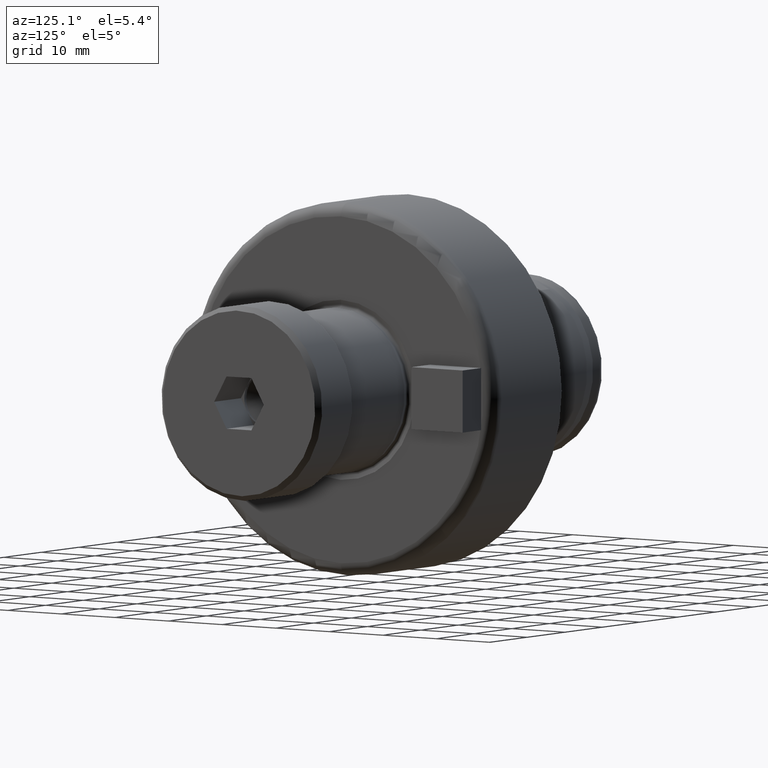
[diagram: clean part render]
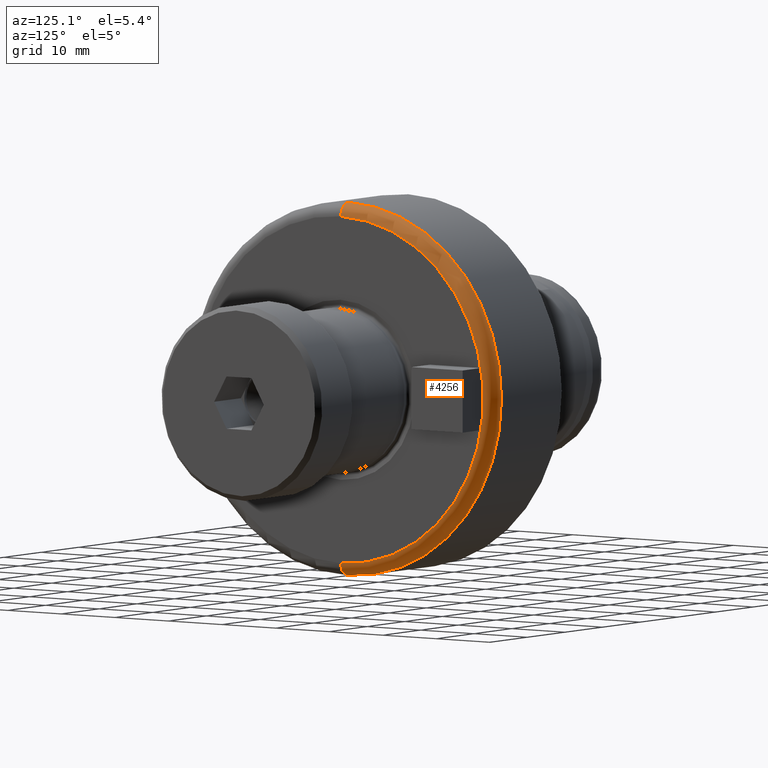
[diagram: same view with one face highlighted and labeled with its STEP entity id]
A machine part, auxiliary view. The second image highlights one B-rep face of the part: STEP entity #4256.
In plain terms, the highlighted toroidal blend (fillet) surface has major radius 26.6 mm and minor (blend) radius 2 mm.
Its self-contained STEP definition (entity closure, byte-faithful):
#3 = VERTEX_POINT ( 'NONE', #480 ) ;
#85 = CARTESIAN_POINT ( 'NONE',  ( 48.00000000000000000, 3.502489845561430200E-015, -28.60000000000000100 ) ) ;
#216 = CARTESIAN_POINT ( 'NONE',  ( 48.00000000000000000, 0.0000000000000000000, 26.59999999999999800 ) ) ;
#480 = CARTESIAN_POINT ( 'NONE',  ( 48.00000000000000000, 0.0000000000000000000, 28.60000000000000100 ) ) ;
#778 = VERTEX_POINT ( 'NONE', #6231 ) ;
#779 = AXIS2_PLACEMENT_3D ( 'NONE', #3778, #3231, #2605 ) ;
#941 = DIRECTION ( 'NONE',  ( 0.0000000000000000000, 0.0000000000000000000, 1.000000000000000000 ) ) ;
#1408 = EDGE_CURVE ( 'NONE', #2474, #3, #5229, .T. ) ;
#1490 = DIRECTION ( 'NONE',  ( 0.0000000000000000000, 0.0000000000000000000, 1.000000000000000000 ) ) ;
#1509 = EDGE_CURVE ( 'NONE', #3, #7484, #6279, .T. ) ;
#1541 = DIRECTION ( 'NONE',  ( -1.000000000000000000, -0.0000000000000000000, -0.0000000000000000000 ) ) ;
#1875 = EDGE_CURVE ( 'NONE', #778, #7484, #5604, .T. ) ;
#1992 = EDGE_LOOP ( 'NONE', ( #5800, #2471, #4722, #3945 ) ) ;
#2250 = AXIS2_PLACEMENT_3D ( 'NONE', #7473, #5127, #3901 ) ;
#2471 = ORIENTED_EDGE ( 'NONE', *, *, #1875, .T. ) ;
#2474 = VERTEX_POINT ( 'NONE', #7451 ) ;
#2594 = DIRECTION ( 'NONE',  ( 0.0000000000000000000, -1.000000000000000000, 0.0000000000000000000 ) ) ;
#2605 = DIRECTION ( 'NONE',  ( 0.0000000000000000000, 0.0000000000000000000, 1.000000000000000000 ) ) ;
#2714 = AXIS2_PLACEMENT_3D ( 'NONE', #216, #2594, #6850 ) ;
#3231 = DIRECTION ( 'NONE',  ( -1.000000000000000000, -0.0000000000000000000, -0.0000000000000000000 ) ) ;
#3234 = EDGE_CURVE ( 'NONE', #2474, #778, #3615, .T. ) ;
#3358 = DIRECTION ( 'NONE',  ( -1.000000000000000000, -0.0000000000000000000, -0.0000000000000000000 ) ) ;
#3615 = CIRCLE ( 'NONE', #4916, 26.59999999999999800 ) ;
#3778 = CARTESIAN_POINT ( 'NONE',  ( 48.00000000000000000, 0.0000000000000000000, 0.0000000000000000000 ) ) ;
#3901 = DIRECTION ( 'NONE',  ( 0.0000000000000000000, -1.224646799147353500E-016, 1.000000000000000000 ) ) ;
#3915 = CARTESIAN_POINT ( 'NONE',  ( 48.00000000000000000, 0.0000000000000000000, 0.0000000000000000000 ) ) ;
#3945 = ORIENTED_EDGE ( 'NONE', *, *, #1408, .F. ) ;
#4256 = ADVANCED_FACE ( 'NONE', ( #6515 ), #6606, .T. ) ;
#4722 = ORIENTED_EDGE ( 'NONE', *, *, #1509, .F. ) ;
#4916 = AXIS2_PLACEMENT_3D ( 'NONE', #7577, #1541, #1490 ) ;
#5127 = DIRECTION ( 'NONE',  ( -0.0000000000000000000, 1.000000000000000000, 1.224646799147353200E-016 ) ) ;
#5229 = CIRCLE ( 'NONE', #2714, 2.000000000000001800 ) ;
#5604 = CIRCLE ( 'NONE', #2250, 2.000000000000001800 ) ;
#5800 = ORIENTED_EDGE ( 'NONE', *, *, #3234, .T. ) ;
#6085 = AXIS2_PLACEMENT_3D ( 'NONE', #3915, #3358, #941 ) ;
#6231 = CARTESIAN_POINT ( 'NONE',  ( 50.00000000000000000, 3.380025165646694700E-015, -26.59999999999999800 ) ) ;
#6279 = CIRCLE ( 'NONE', #6085, 28.60000000000000100 ) ;
#6515 = FACE_OUTER_BOUND ( 'NONE', #1992, .T. ) ;
#6606 = TOROIDAL_SURFACE ( 'NONE', #779, 26.59999999999999800, 2.000000000000001800 ) ;
#6850 = DIRECTION ( 'NONE',  ( 0.0000000000000000000, 0.0000000000000000000, -1.000000000000000000 ) ) ;
#7451 = CARTESIAN_POINT ( 'NONE',  ( 50.00000000000000000, 0.0000000000000000000, 26.59999999999999800 ) ) ;
#7473 = CARTESIAN_POINT ( 'NONE',  ( 48.00000000000000000, 3.257560485731959500E-015, -26.59999999999999800 ) ) ;
#7484 = VERTEX_POINT ( 'NONE', #85 ) ;
#7577 = CARTESIAN_POINT ( 'NONE',  ( 50.00000000000000000, 0.0000000000000000000, 0.0000000000000000000 ) ) ;